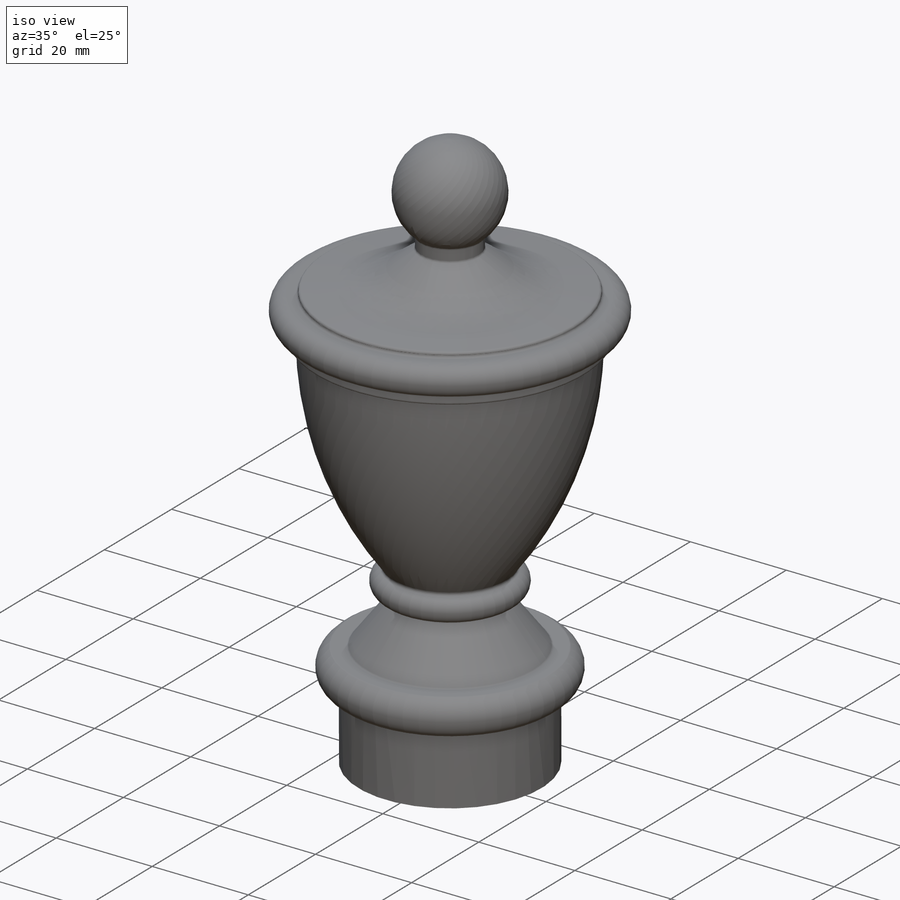
[diagram: iso view]
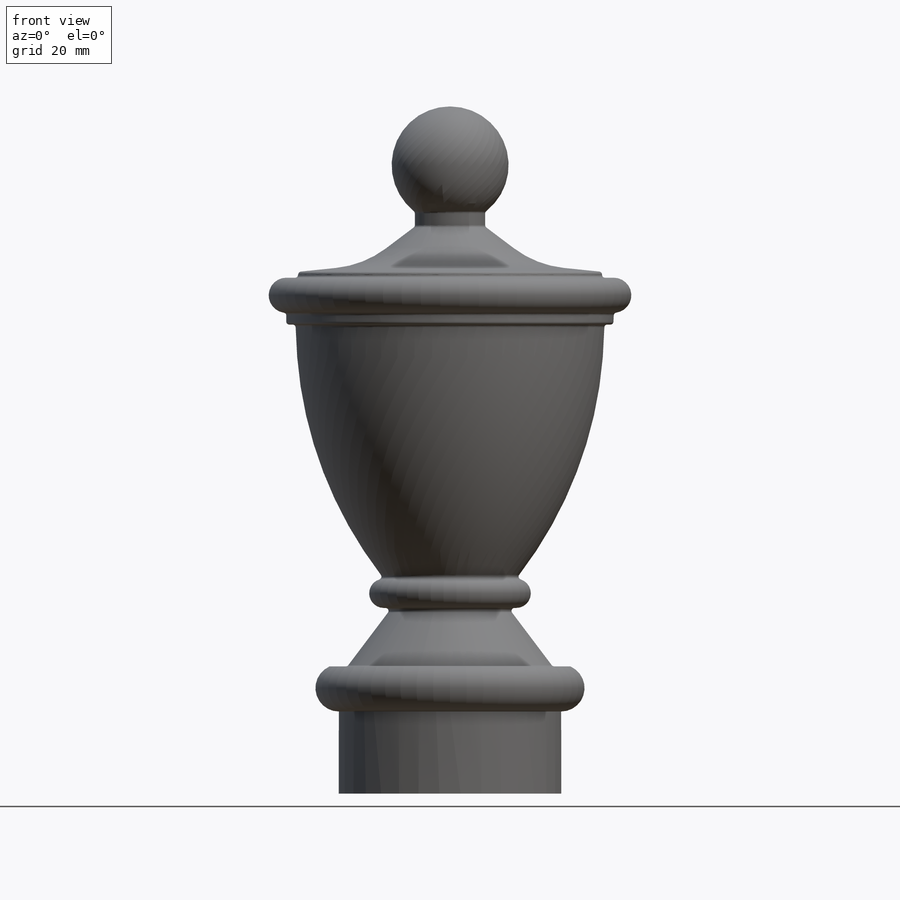
[diagram: front view]
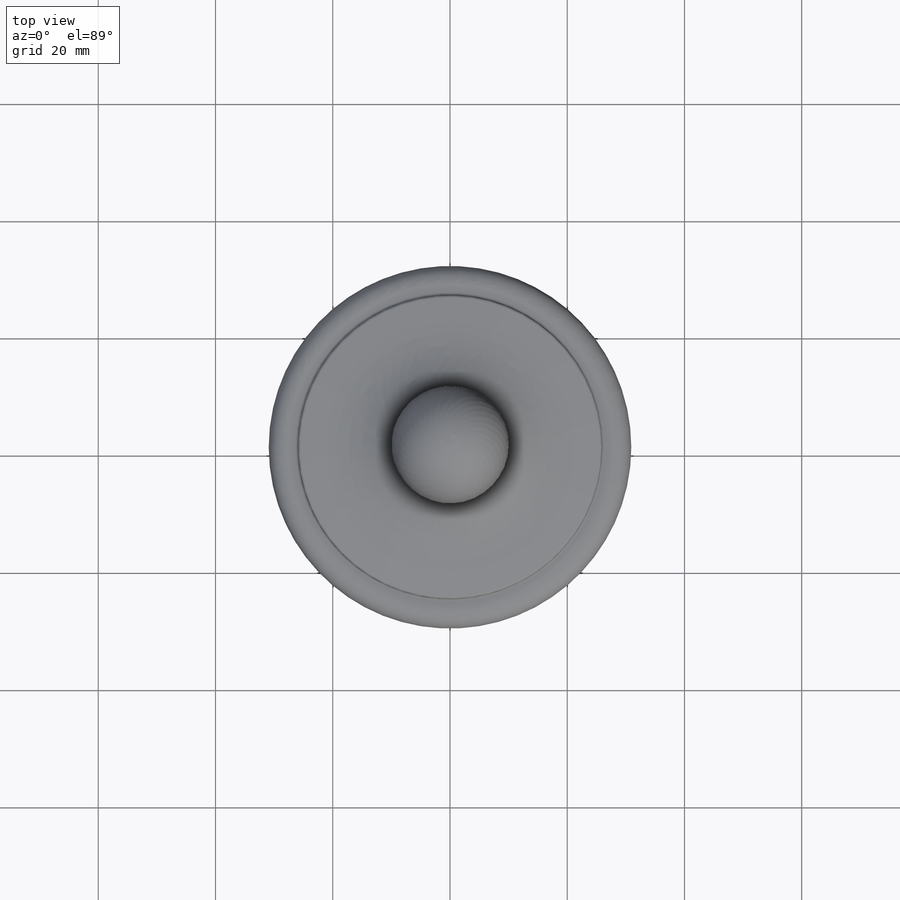
[diagram: top view]
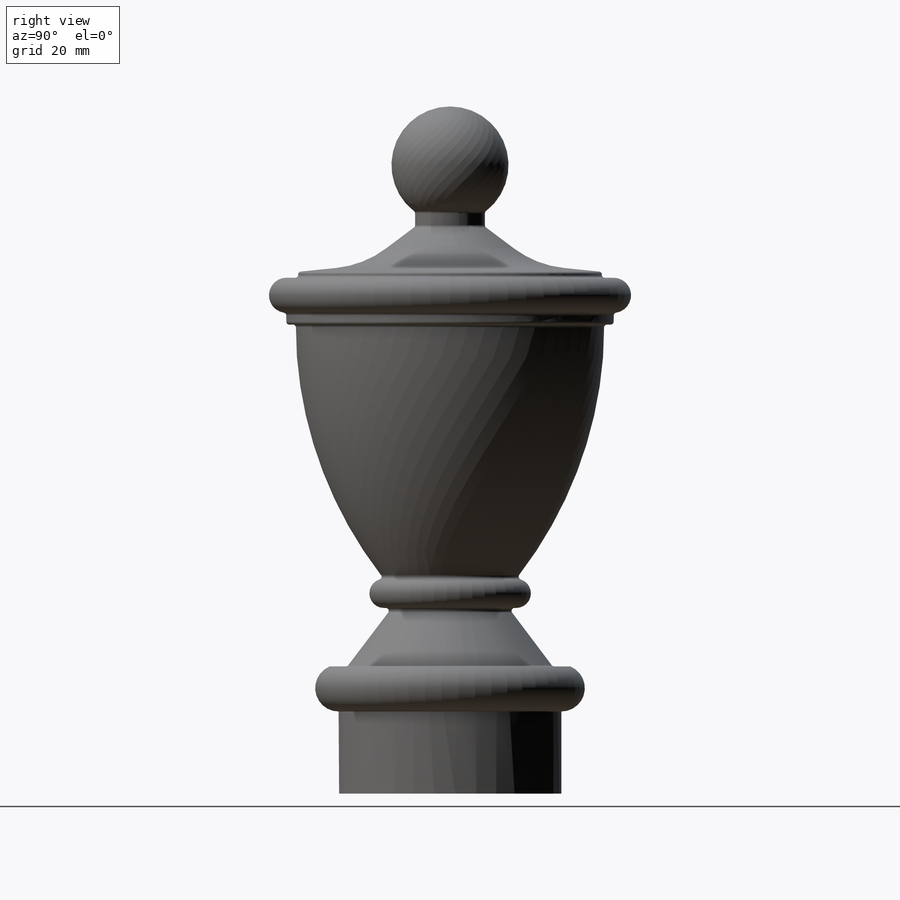
[diagram: right view]
SOLIDWORKS PART (.sldprt)
format: sldprt  version: not decoded by parser v0  size: 391,168 bytes
history: native  units: mm
features: sketch x2, revolve x2, fillet x2, material x1 (+15 scaffold rows collapsed)
feature tree (22):
  scaffold x15  (default folders/planes/origin — collapsed)
  material  "Material <not specified>"
  sketch  "Sketch1"  dims[c1.D4=4.0mm c1.D1=4.0mm c1.D8=2.5mm c1.D9=40.0mm c1.D11=70.0mm c2.D1=~10.638449mm c3.D1=30.0deg c3.D2=19.0mm c3.D3=14.0mm c3.D4=3.0mm c3.D5=10.0mm c3.D6=3.0mm c4.D6=127.0deg c4.D7=1.3mm c4.D10=80.0mm c4.D9=27.0mm c4.D12=6.5mm c4.D2=19.0mm c4.D5=~34.160935mm c5.D9=80.0mm c5.D10=0.4mm]
  revolve  "Revolve1"  Angle=360deg
  sketch  "Sketch3"  dims[c1.D3=3.0mm c1.D7=17.0mm c1.D10=17.0mm c1.D11=20.0mm c1.D1=2.0mm c1.D2=2.0mm c1.D4=2.0mm c1.D5=1.0mm c1.D6=18.0mm c1.D8=~22.152374mm c2.D8=~35.65378deg c3.D8=~2.068789mm c3.D6=6.0mm c4.D8=15.0mm c4.D9=4.0mm c4.D10=6.5mm c4.D12=2.5mm c4.D13=0.4mm]
  revolve  "Revolve2"  Angle=360deg
  fillet  "Fillet2"  Radius=0.5mm
  fillet  "Fillet3"  Radius=0.5mm
decode coverage: 6 of 6 modeling features carry decoded parameters
note: ~ marks probable driven/reference dimensions
note: suppression state not decoded; provenance and decode notes live in map.json
